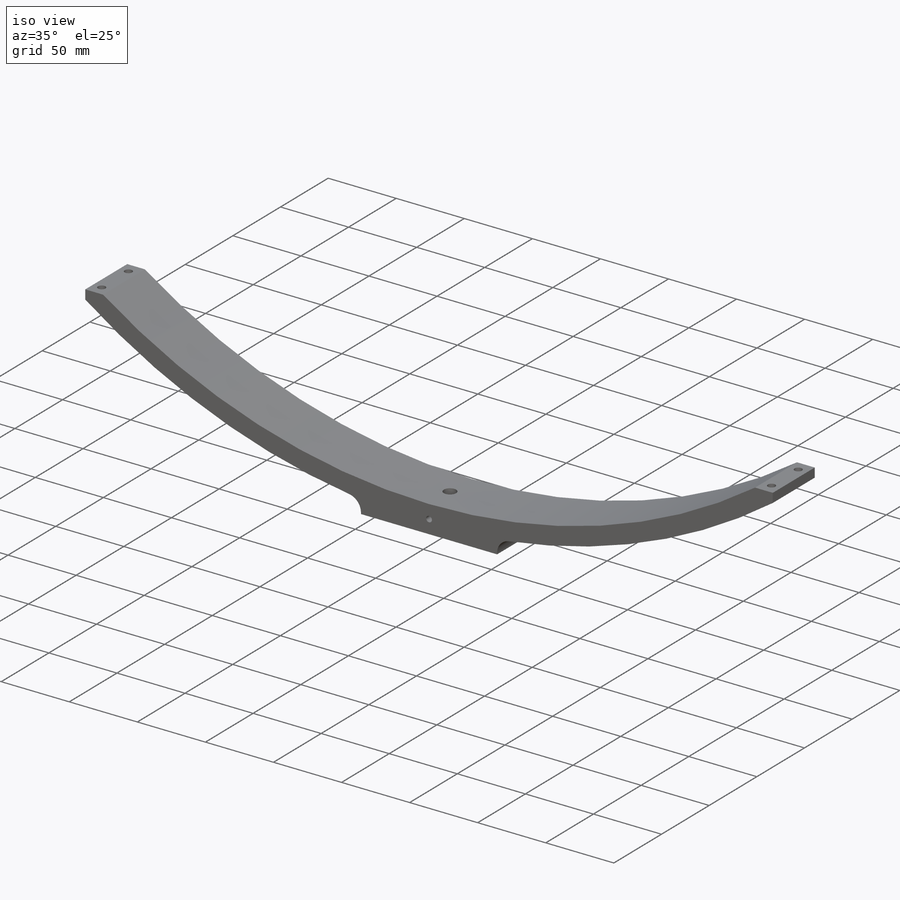
[diagram: iso view]
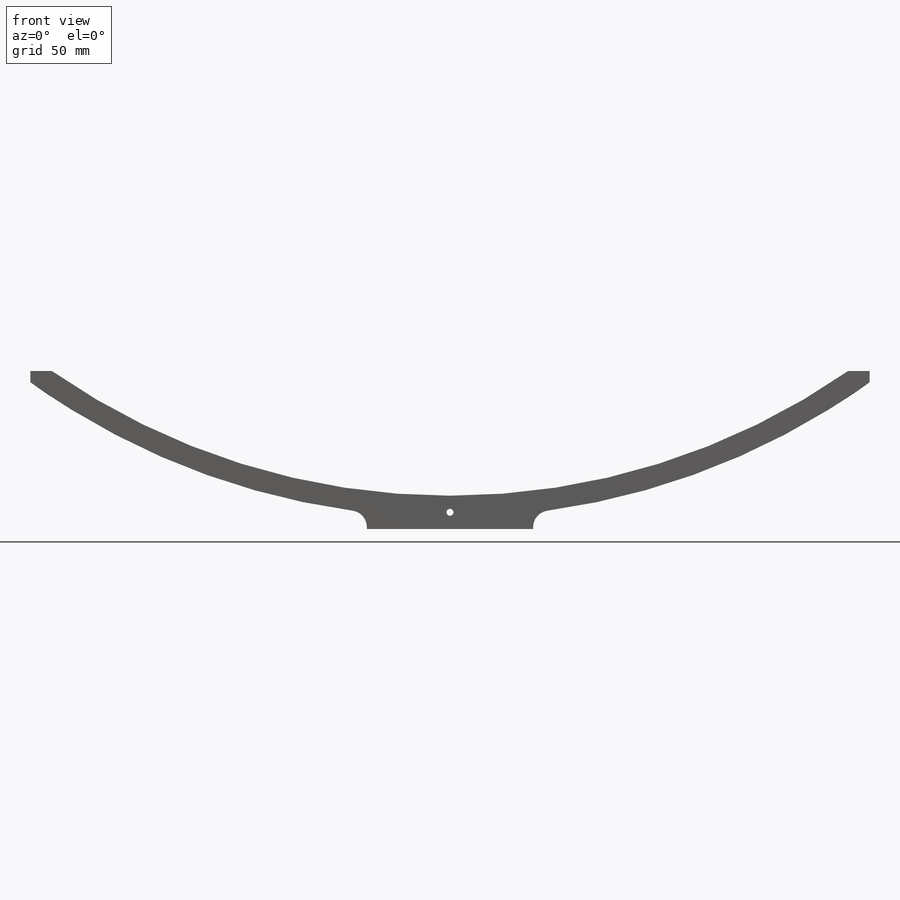
[diagram: front view]
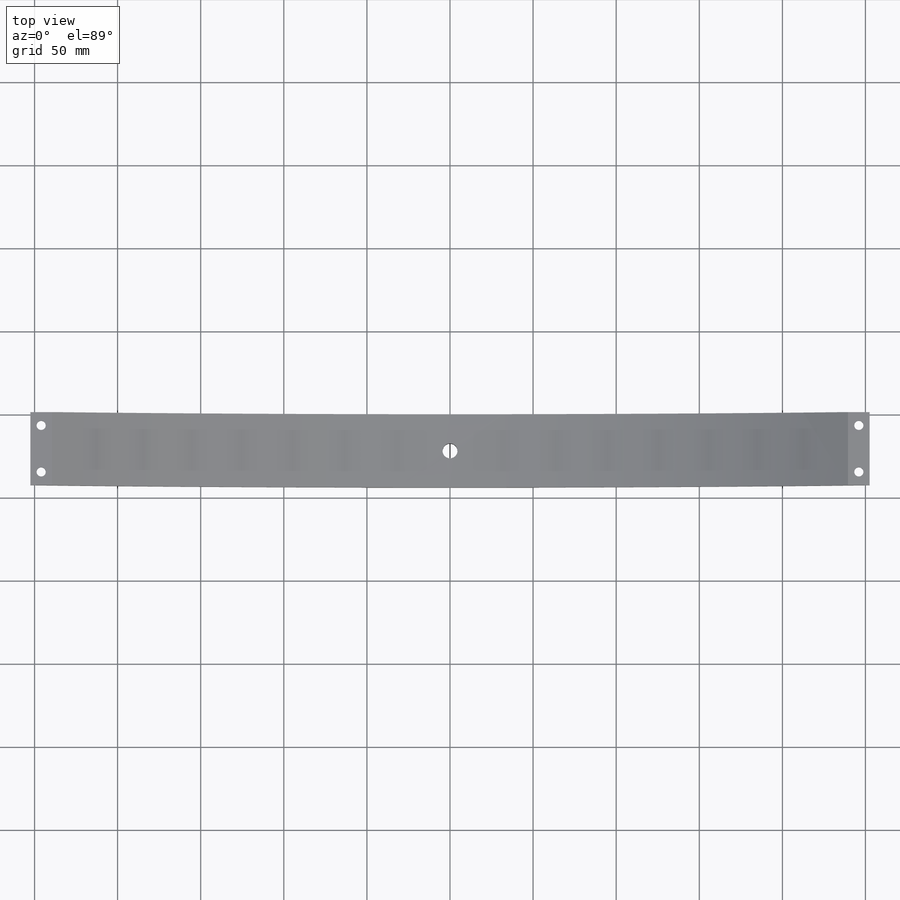
[diagram: top view]
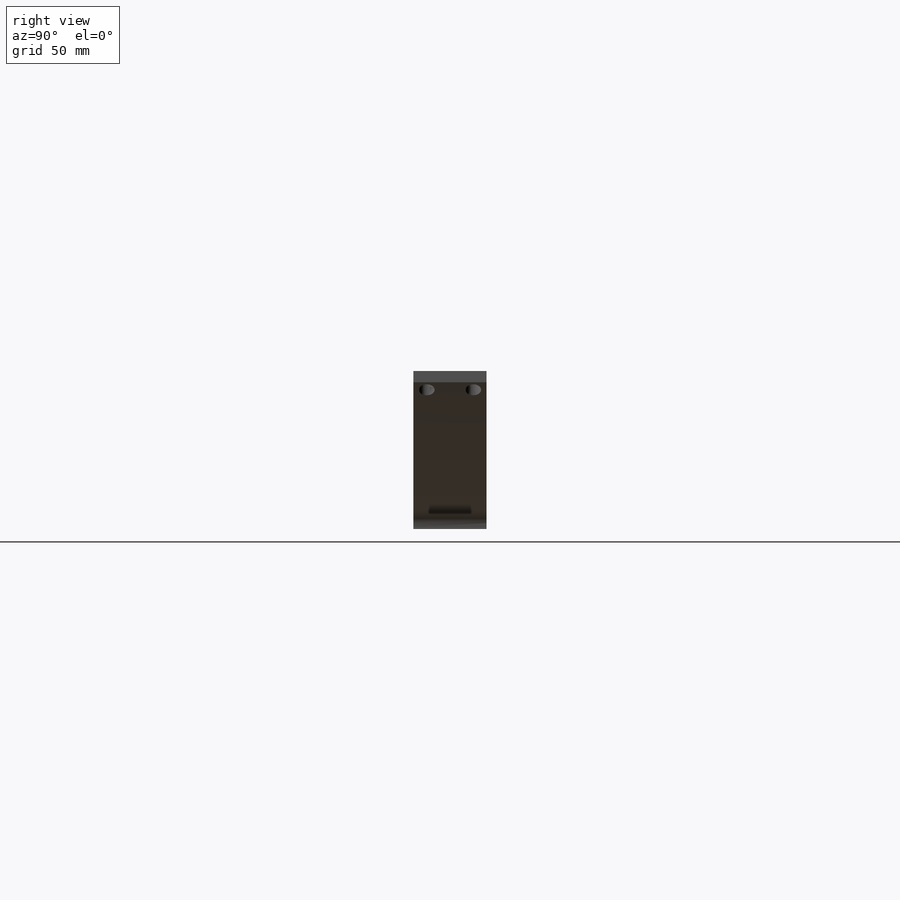
[diagram: right view]
SOLIDWORKS PART (.sldprt)
format: sldprt  version: not decoded by parser v0  size: 387,072 bytes
history: native  units: mm
features: sketch x11, cut_extrude x8, plane x4, material x1, extrude x1, hole x1, thread x1, fillet x1 (+13 scaffold rows collapsed)
feature tree (41):
  scaffold x13  (default folders/planes/origin — collapsed)
  material  "3.1325 (EN-AW 2017A)"
  plane  "Plan de face"
  plane  "Plan de dessus"
  plane  "Plan de droite"
  sketch  "Esquisse1"  dims[c1.D3=~223.152092mm c1.D4=~461.254195mm c1.D1=252.5mm c1.D2=225.0mm c2.D3=150.0mm c2.D4=13.0mm c2.D2=50.0mm c3.D3=50.0mm c3.D4=20.0mm c3.D6=100.0mm c4.D4=~32.107135deg c4.D5=13.0mm]
  extrude  "Boss.-Extru.1"  Depth=44mm
  sketch  "Esquisse2"  dims[c1.D1=10.0mm c1.D2=5.0mm c2.D1=22.0mm]
  cut_extrude  "Enlèv. mat.-Extru.1"  [1 undecoded]
  sketch  "Esquisse6"  dims[D1=8.0mm]
  cut_extrude  "Enlèv. mat.-Extru.2"  [1 undecoded]
  plane  "Plan2"  Offset=30mm
  sketch  "Esquisse7"  dims[D1=~6.315427mm]
  cut_extrude  "Enlèv. mat.-Extru.3"  Depth=24mm
  sketch  "Esquisse8"  dims[D1=8.0mm]
  cut_extrude  "Enlèv. mat.-Extru.4"  [1 undecoded]
  sketch  "Esquisse9"  dims[c1.D1=9.5mm c1.D2=9.5mm c2.D1=0.0mm c2.D2=0.0mm]
  cut_extrude  "Enlèv. mat.-Extru.5"  Depth=24mm
  sketch  "Esquisse10"  dims[c1.D1=~4.032668mm c1.D2=5.5mm c2.D1=8.0mm c2.D2=8.0mm]
  cut_extrude  "Enlèv. mat.-Extru.6"  [1 undecoded]
  sketch  "Esquisse11"  dims[D1=~7.115899mm]
  cut_extrude  "Enlèv. mat.-Extru.8"  Depth=24mm
  sketch  "Esquisse13"  dims[D1=~4.713361mm]
  cut_extrude  "Enlèv. mat.-Extru.11"  Depth=24mm
  hole  "Trou taraudé M51"  Diameter=4.2mm Depth=44mm
  sketch  "Esquisse15"  dims[D1=0.0mm D2=10.0mm]
  sketch  "Esquisse14"  dims[hole-wizard template sketch: 60 standard entries collapsed; hole parameters kept: c18.Profondeur du trou pour taraudage jusqu'au prochain=44.0mm]
  thread  "Filetage de perçage1"  Diameter=5mm  [1 undecoded]
  fillet  "Congé1"  Radius=10mm
decode coverage: 19 of 23 modeling features carry decoded parameters
note: ~ marks probable driven/reference dimensions
note: 5 parameter values undecoded
summary: no parameter record found for 4 features
note: suppression state not decoded; provenance and decode notes live in map.json
